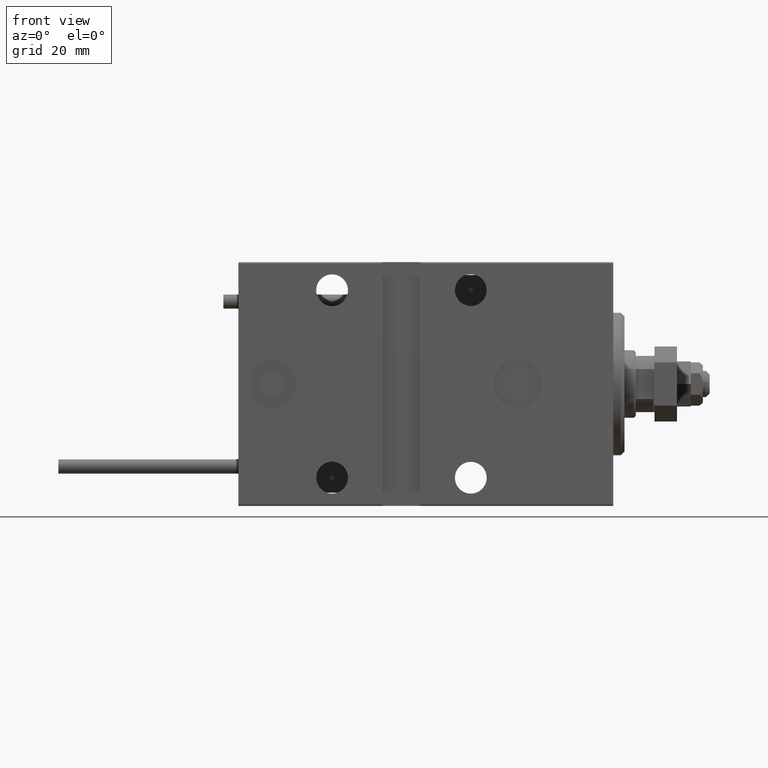
[diagram: clean part render]
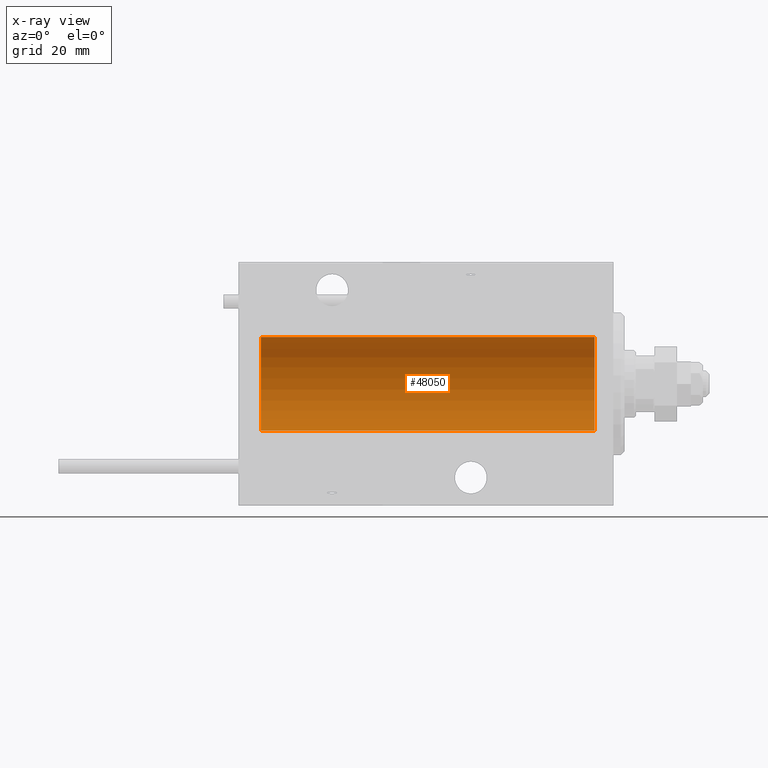
[diagram: x-ray — body ghosted, one internal face saturated and labeled with its STEP entity id]
A machine part, front view, then the same camera in x-ray: the body is ghosted and one INTERNAL B-rep face — a face not visible from any outside direction — is saturated and labeled: STEP entity #48050.
In plain terms, the highlighted cylindrical surface (partial cylindrical patch) has radius 12.5 mm, axis along (1, 0, -0).
Its self-contained STEP definition (entity closure, byte-faithful):
#369 = AXIS2_PLACEMENT_3D ( 'NONE', #30955, #31471, #46858 ) ;
#410 = FACE_OUTER_BOUND ( 'NONE', #17702, .T. ) ;
#942 = CARTESIAN_POINT ( 'NONE',  ( 94.00000000000000000, 0.000000000000000000, 12.50000000000000000 ) ) ;
#1575 = CIRCLE ( 'NONE', #45058, 12.50000000000000000 ) ;
#3452 = DIRECTION ( 'NONE',  ( -1.000000000000000000, -0.000000000000000000, -0.000000000000000000 ) ) ;
#4974 = CARTESIAN_POINT ( 'NONE',  ( 5.000000000000004441, 0.000000000000000000, 12.50000000000000000 ) ) ;
#5406 = VERTEX_POINT ( 'NONE', #4974 ) ;
#9795 = CARTESIAN_POINT ( 'NONE',  ( 94.00000000000000000, 0.000000000000000000, 12.50000000000000000 ) ) ;
#11267 = CARTESIAN_POINT ( 'NONE',  ( 94.00000000000000000, 0.000000000000000000, 0.000000000000000000 ) ) ;
#11474 = LINE ( 'NONE', #27857, #46377 ) ;
#12277 = DIRECTION ( 'NONE',  ( -1.000000000000000000, -0.000000000000000000, -0.000000000000000000 ) ) ;
#12739 = CARTESIAN_POINT ( 'NONE',  ( 94.00000000000000000, 1.530808498934191521E-15, -12.50000000000000000 ) ) ;
#14100 = CIRCLE ( 'NONE', #369, 12.50000000000000000 ) ;
#17702 = EDGE_LOOP ( 'NONE', ( #44155, #31829, #33335, #40496 ) ) ;
#17858 = VERTEX_POINT ( 'NONE', #12739 ) ;
#18958 = EDGE_CURVE ( 'NONE', #28437, #5406, #1575, .T. ) ;
#22609 = VERTEX_POINT ( 'NONE', #9795 ) ;
#22920 = DIRECTION ( 'NONE',  ( 0.000000000000000000, 0.000000000000000000, 1.000000000000000000 ) ) ;
#27857 = CARTESIAN_POINT ( 'NONE',  ( 94.00000000000000000, 1.530808498934191521E-15, -12.50000000000000000 ) ) ;
#28437 = VERTEX_POINT ( 'NONE', #35012 ) ;
#30955 = CARTESIAN_POINT ( 'NONE',  ( 94.00000000000000000, 0.000000000000000000, 0.000000000000000000 ) ) ;
#31471 = DIRECTION ( 'NONE',  ( -1.000000000000000000, 0.000000000000000000, 0.000000000000000000 ) ) ;
#31767 = EDGE_CURVE ( 'NONE', #17858, #22609, #14100, .T. ) ;
#31829 = ORIENTED_EDGE ( 'NONE', *, *, #38222, .T. ) ;
#33335 = ORIENTED_EDGE ( 'NONE', *, *, #18958, .T. ) ;
#34275 = CARTESIAN_POINT ( 'NONE',  ( 5.000000000000004441, 0.000000000000000000, 0.000000000000000000 ) ) ;
#35012 = CARTESIAN_POINT ( 'NONE',  ( 5.000000000000004441, 1.530808498934191521E-15, -12.50000000000000000 ) ) ;
#35185 = DIRECTION ( 'NONE',  ( -1.000000000000000000, -0.000000000000000000, -0.000000000000000000 ) ) ;
#38018 = CYLINDRICAL_SURFACE ( 'NONE', #43518, 12.50000000000000000 ) ;
#38222 = EDGE_CURVE ( 'NONE', #17858, #28437, #11474, .T. ) ;
#39260 = VECTOR ( 'NONE', #12277, 1000.000000000000000 ) ;
#40496 = ORIENTED_EDGE ( 'NONE', *, *, #41138, .F. ) ;
#41138 = EDGE_CURVE ( 'NONE', #22609, #5406, #46832, .T. ) ;
#42797 = DIRECTION ( 'NONE',  ( 0.000000000000000000, 0.000000000000000000, 1.000000000000000000 ) ) ;
#43518 = AXIS2_PLACEMENT_3D ( 'NONE', #11267, #3452, #42797 ) ;
#44155 = ORIENTED_EDGE ( 'NONE', *, *, #31767, .F. ) ;
#45058 = AXIS2_PLACEMENT_3D ( 'NONE', #34275, #46126, #22920 ) ;
#46126 = DIRECTION ( 'NONE',  ( -1.000000000000000000, 0.000000000000000000, 0.000000000000000000 ) ) ;
#46377 = VECTOR ( 'NONE', #35185, 1000.000000000000000 ) ;
#46832 = LINE ( 'NONE', #942, #39260 ) ;
#46858 = DIRECTION ( 'NONE',  ( 0.000000000000000000, 0.000000000000000000, 1.000000000000000000 ) ) ;
#48050 = ADVANCED_FACE ( 'NONE', ( #410 ), #38018, .F. ) ;